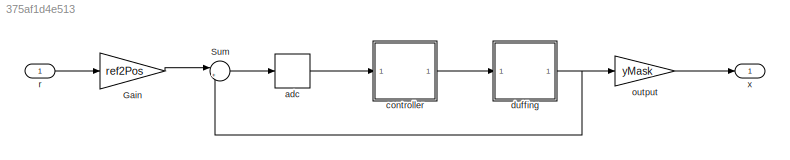
MODEL slx_375af1d4e513
KIND model
CONFIG AbsTol = auto
CONFIG EnableMultiTasking = off
CONFIG FixedStep = dt
CONFIG MaxStep = .1
CONFIG MinStep = auto
CONFIG RelTol = 1e-3
CONFIG SampleTimeConstraint = Unconstrained
CONFIG Solver = FixedStepAuto
CONFIG SolverName = FixedStepAuto
CONFIG StartTime = 0.0
CONFIG StopTime = t_end
BLOCK [Gain] Gain
  Gain = ref2Pos
  Multiplication = Matrix(K*u)
  OutDataTypeStr = Inherit: Inherit via internal rule
  ParamDataTypeStr = Inherit: Inherit via internal rule
  SaturateOnIntegerOverflow = off
BLOCK [Sum] Sum
  IconShape = round
  InputSameDT = off
  Inputs = |+-
  OutDataTypeStr = Inherit: Inherit via internal rule
  Ports = [2, 1]
  SaturateOnIntegerOverflow = off
BLOCK [ZeroOrderHold] adc
  SCDEnableBlockLinearizationSpecification = on
  SampleTime = Ts
BLOCK [SubSystem] controller
  Ports = [1, 1]
  ReferencedSubsystem = controller
  RequestExecContextInheritance = off
  TreatAsAtomicUnit = on
BLOCK [SubSystem] duffing
  Ports = [1, 1]
  ReferencedSubsystem = duffing
  RequestExecContextInheritance = off
BLOCK [Gain] output
  Gain = yMask
  Multiplication = Matrix(K*u)
  OutDataTypeStr = Inherit: Inherit via internal rule
  ParamDataTypeStr = Inherit: Inherit via internal rule
  SaturateOnIntegerOverflow = off
BLOCK [Inport] r
  IconDisplay = Port number
BLOCK [Outport] x
  IconDisplay = Port number
LINE Gain:1 -> Sum:1
LINE Sum:1 -> adc:1
LINE adc:1 -> controller:1
LINE controller:1 -> duffing:1
NET duffing:1 -> Sum:2, output:1
LINE output:1 -> x:1
LINE r:1 -> Gain:1
note: NET lines group one-source signal fan-out (src -> all destinations, sorted); 1:1 wires keep LINE
